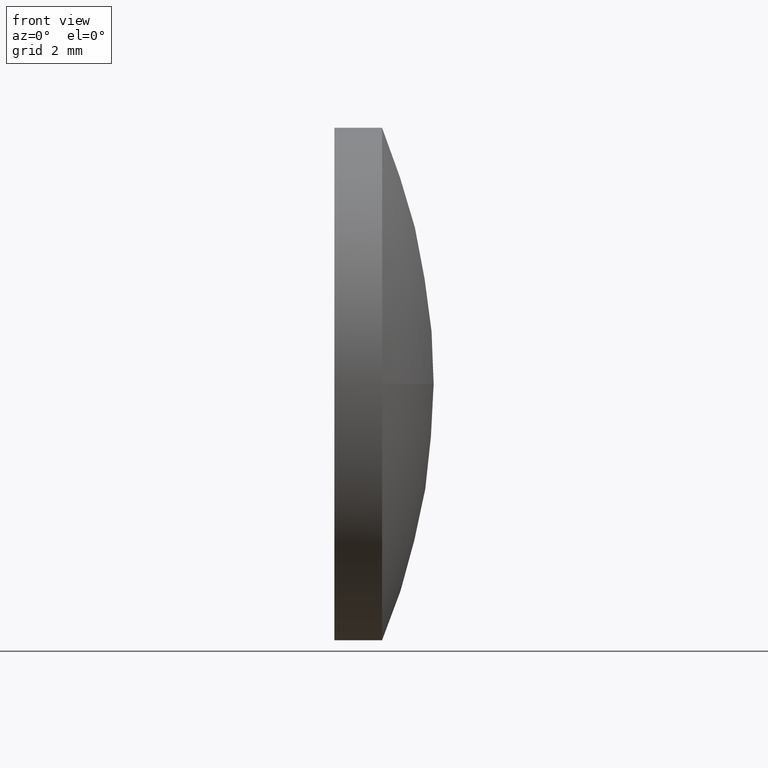
[diagram: clean part render]
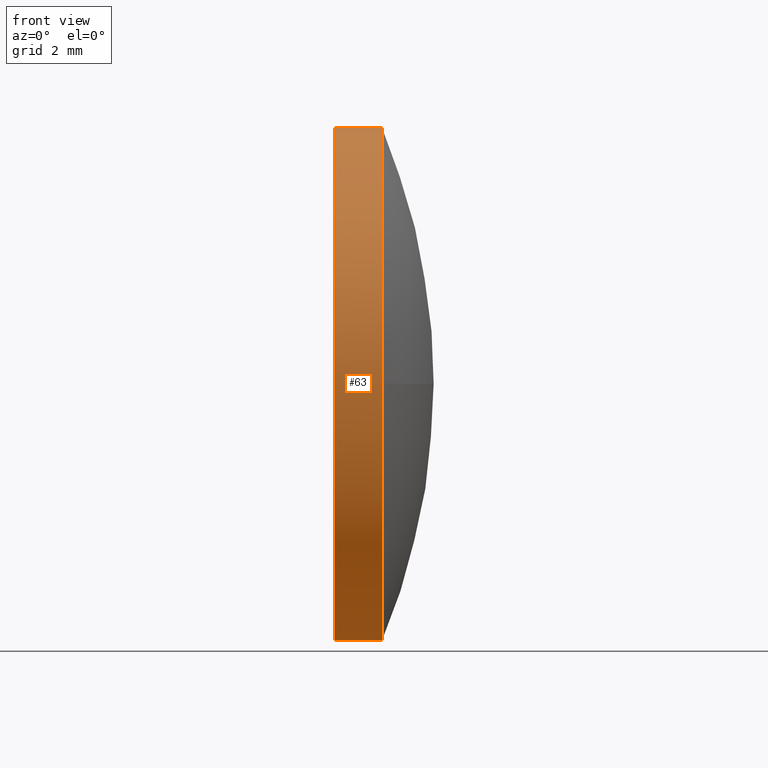
[diagram: same view with one face highlighted and labeled with its STEP entity id]
A machine part, front view. The second image highlights one B-rep face of the part: STEP entity #63.
In plain terms, the highlighted cylindrical surface (partial cylindrical patch) has radius 8 mm, axis along (-1, -0, -0).
Its self-contained STEP definition (entity closure, byte-faithful):
#2 = VECTOR ( 'NONE', #83, 1000.000000000000000 ) ;
#9 = CARTESIAN_POINT ( 'NONE',  ( 538.1372096364605100, 114.0833661660866900, 0.0000000000000000000 ) ) ;
#13 = CARTESIAN_POINT ( 'NONE',  ( 538.1372096364605100, 122.0833661660866600, 0.0000000000000000000 ) ) ;
#25 = VERTEX_POINT ( 'NONE', #153 ) ;
#32 = CARTESIAN_POINT ( 'NONE',  ( 536.6472096364605000, 122.0833661660866600, 0.0000000000000000000 ) ) ;
#33 = CARTESIAN_POINT ( 'NONE',  ( 538.1372096364605100, 122.0833661660866600, -7.999999999999992900 ) ) ;
#38 = EDGE_CURVE ( 'NONE', #166, #133, #56, .T. ) ;
#39 = LINE ( 'NONE', #143, #2 ) ;
#43 = CIRCLE ( 'NONE', #82, 7.999999999999992900 ) ;
#49 = DIRECTION ( 'NONE',  ( -1.000000000000000000, -0.0000000000000000000, -0.0000000000000000000 ) ) ;
#56 = LINE ( 'NONE', #169, #85 ) ;
#61 = DIRECTION ( 'NONE',  ( 0.0000000000000000000, 0.0000000000000000000, 1.000000000000000000 ) ) ;
#62 = DIRECTION ( 'NONE',  ( 0.0000000000000000000, 0.0000000000000000000, 1.000000000000000000 ) ) ;
#63 = ADVANCED_FACE ( 'NONE', ( #185 ), #164, .T. ) ;
#64 = VERTEX_POINT ( 'NONE', #9 ) ;
#65 = EDGE_CURVE ( 'NONE', #64, #166, #91, .T. ) ;
#68 = ORIENTED_EDGE ( 'NONE', *, *, #119, .T. ) ;
#71 = CARTESIAN_POINT ( 'NONE',  ( 536.6472096364605000, 122.0833661660866600, 7.999999999999992900 ) ) ;
#77 = ORIENTED_EDGE ( 'NONE', *, *, #65, .T. ) ;
#82 = AXIS2_PLACEMENT_3D ( 'NONE', #13, #107, #62 ) ;
#83 = DIRECTION ( 'NONE',  ( -1.000000000000000000, -0.0000000000000000000, -0.0000000000000000000 ) ) ;
#85 = VECTOR ( 'NONE', #167, 1000.000000000000000 ) ;
#87 = CARTESIAN_POINT ( 'NONE',  ( 538.1372096364605100, 122.0833661660866600, 7.999999999999992900 ) ) ;
#91 = CIRCLE ( 'NONE', #171, 7.999999999999992900 ) ;
#95 = CARTESIAN_POINT ( 'NONE',  ( 534.7243929316149400, 122.0833661660866600, 0.0000000000000000000 ) ) ;
#105 = EDGE_CURVE ( 'NONE', #180, #25, #39, .T. ) ;
#107 = DIRECTION ( 'NONE',  ( -1.000000000000000000, -0.0000000000000000000, -0.0000000000000000000 ) ) ;
#112 = ORIENTED_EDGE ( 'NONE', *, *, #38, .T. ) ;
#119 = EDGE_CURVE ( 'NONE', #180, #64, #43, .T. ) ;
#128 = DIRECTION ( 'NONE',  ( -1.000000000000000000, -0.0000000000000000000, -0.0000000000000000000 ) ) ;
#133 = VERTEX_POINT ( 'NONE', #71 ) ;
#140 = EDGE_LOOP ( 'NONE', ( #175, #68, #77, #112, #145 ) ) ;
#141 = EDGE_CURVE ( 'NONE', #25, #133, #148, .T. ) ;
#142 = CARTESIAN_POINT ( 'NONE',  ( 538.1372096364605100, 122.0833661660866600, 0.0000000000000000000 ) ) ;
#143 = CARTESIAN_POINT ( 'NONE',  ( 534.7243929316149400, 122.0833661660866600, -7.999999999999992900 ) ) ;
#145 = ORIENTED_EDGE ( 'NONE', *, *, #141, .F. ) ;
#148 = CIRCLE ( 'NONE', #150, 7.999999999999992900 ) ;
#150 = AXIS2_PLACEMENT_3D ( 'NONE', #32, #128, #61 ) ;
#153 = CARTESIAN_POINT ( 'NONE',  ( 536.6472096364605000, 122.0833661660866600, -7.999999999999992900 ) ) ;
#154 = DIRECTION ( 'NONE',  ( 0.0000000000000000000, 0.0000000000000000000, 1.000000000000000000 ) ) ;
#155 = DIRECTION ( 'NONE',  ( -1.000000000000000000, -0.0000000000000000000, -0.0000000000000000000 ) ) ;
#162 = AXIS2_PLACEMENT_3D ( 'NONE', #95, #155, #154 ) ;
#164 = CYLINDRICAL_SURFACE ( 'NONE', #162, 7.999999999999992900 ) ;
#166 = VERTEX_POINT ( 'NONE', #87 ) ;
#167 = DIRECTION ( 'NONE',  ( -1.000000000000000000, -0.0000000000000000000, -0.0000000000000000000 ) ) ;
#169 = CARTESIAN_POINT ( 'NONE',  ( 534.7243929316149400, 122.0833661660866600, 7.999999999999992900 ) ) ;
#171 = AXIS2_PLACEMENT_3D ( 'NONE', #142, #49, #173 ) ;
#173 = DIRECTION ( 'NONE',  ( 0.0000000000000000000, 0.0000000000000000000, 1.000000000000000000 ) ) ;
#175 = ORIENTED_EDGE ( 'NONE', *, *, #105, .F. ) ;
#180 = VERTEX_POINT ( 'NONE', #33 ) ;
#185 = FACE_OUTER_BOUND ( 'NONE', #140, .T. ) ;